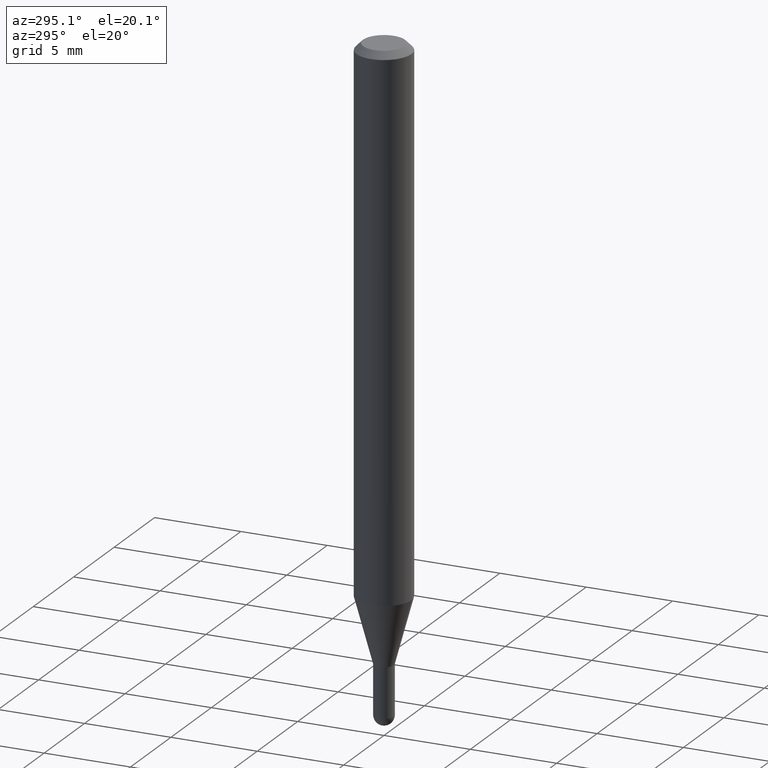
[diagram: clean part render]
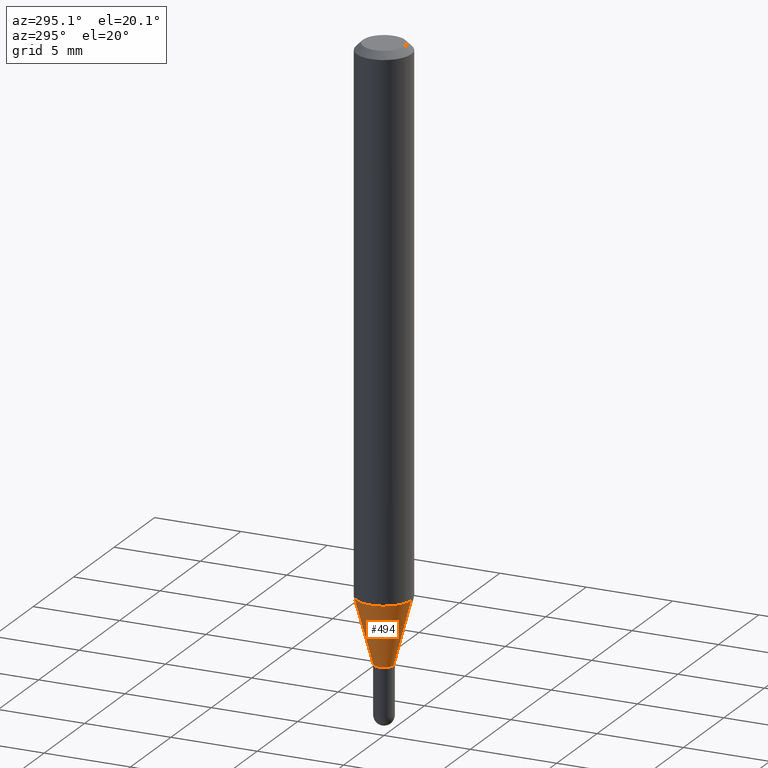
[diagram: same view with one face highlighted and labeled with its STEP entity id]
A machine part, auxiliary view. The second image highlights one B-rep face of the part: STEP entity #494.
In plain terms, the highlighted conical surface has half-angle 15 deg.
Its self-contained STEP definition (entity closure, byte-faithful):
#16 = DIRECTION ( 'NONE',  ( -6.982962677686266711E-15, -1.000000000000000000, 0.000000000000000000 ) ) ;
#19 = EDGE_CURVE ( 'NONE', #285, #33, #125, .T. ) ;
#33 = VERTEX_POINT ( 'NONE', #313 ) ;
#41 = DIRECTION ( 'NONE',  ( -6.982962677686266711E-15, -1.000000000000000000, 0.000000000000000000 ) ) ;
#47 = CARTESIAN_POINT ( 'NONE',  ( 3.338058803651969615E-29, -4.765880787113381937E-15, -1.364999999999999991 ) ) ;
#76 = DIRECTION ( 'NONE',  ( -1.807323732225378260E-15, -0.2588190451025250693, 0.9659258262890670910 ) ) ;
#78 = ORIENTED_EDGE ( 'NONE', *, *, #249, .F. ) ;
#113 = VECTOR ( 'NONE', #76, 39.37007874015748854 ) ;
#125 = CIRCLE ( 'NONE', #228, 0.02249999999999964528 ) ;
#141 = DIRECTION ( 'NONE',  ( -2.445464325019758025E-29, 3.491487756127019811E-15, 1.000000000000000000 ) ) ;
#185 = CIRCLE ( 'NONE', #340, 0.06250000000000000000 ) ;
#199 = ORIENTED_EDGE ( 'NONE', *, *, #19, .T. ) ;
#202 = CARTESIAN_POINT ( 'NONE',  ( 1.598721155460533754E-16, 0.02249999999999487826, -1.364999999999999991 ) ) ;
#209 = CARTESIAN_POINT ( 'NONE',  ( 3.019806626980729718E-16, 0.02249999999999487826, -1.364999999999999991 ) ) ;
#217 = FACE_OUTER_BOUND ( 'NONE', #363, .T. ) ;
#221 = EDGE_CURVE ( 'NONE', #33, #424, #425, .T. ) ;
#223 = ORIENTED_EDGE ( 'NONE', *, *, #292, .F. ) ;
#225 = CARTESIAN_POINT ( 'NONE',  ( -4.364351673553620871E-16, -0.06250000000000427436, -1.215717967697248048 ) ) ;
#228 = AXIS2_PLACEMENT_3D ( 'NONE', #47, #238, #41 ) ;
#238 = DIRECTION ( 'NONE',  ( -2.445464325019758025E-29, 3.491487756127019811E-15, 1.000000000000000000 ) ) ;
#249 = EDGE_CURVE ( 'NONE', #285, #392, #386, .T. ) ;
#265 = AXIS2_PLACEMENT_3D ( 'NONE', #456, #141, #16 ) ;
#285 = VERTEX_POINT ( 'NONE', #209 ) ;
#292 = EDGE_CURVE ( 'NONE', #392, #424, #185, .T. ) ;
#312 = DIRECTION ( 'NONE',  ( 1.839019923739649225E-15, 0.2588190451025318417, 0.9659258262890653146 ) ) ;
#313 = CARTESIAN_POINT ( 'NONE',  ( -1.571166602479051226E-16, -0.02250000000000441230, -1.364999999999999991 ) ) ;
#340 = AXIS2_PLACEMENT_3D ( 'NONE', #505, #469, #395 ) ;
#363 = EDGE_LOOP ( 'NONE', ( #78, #199, #379, #223 ) ) ;
#373 = CARTESIAN_POINT ( 'NONE',  ( -1.571166602479051226E-16, -0.02250000000000441230, -1.364999999999999991 ) ) ;
#379 = ORIENTED_EDGE ( 'NONE', *, *, #221, .T. ) ;
#386 = LINE ( 'NONE', #202, #406 ) ;
#392 = VERTEX_POINT ( 'NONE', #508 ) ;
#395 = DIRECTION ( 'NONE',  ( -6.982962677686265922E-15, -1.000000000000000000, 4.370956789862821150E-15 ) ) ;
#406 = VECTOR ( 'NONE', #312, 39.37007874015748143 ) ;
#424 = VERTEX_POINT ( 'NONE', #225 ) ;
#425 = LINE ( 'NONE', #373, #113 ) ;
#428 = CONICAL_SURFACE ( 'NONE', #265, 0.02249999999999964528, 0.2617993877991574014 ) ;
#456 = CARTESIAN_POINT ( 'NONE',  ( 3.338058803651969615E-29, -4.765880787113381937E-15, -1.364999999999999991 ) ) ;
#469 = DIRECTION ( 'NONE',  ( -2.445464325019758025E-29, 3.491487756127019811E-15, 1.000000000000000000 ) ) ;
#494 = ADVANCED_FACE ( 'NONE', ( #217 ), #428, .T. ) ;
#505 = CARTESIAN_POINT ( 'NONE',  ( 2.972994919289143303E-29, -4.244664399118566886E-15, -1.215717967697248492 ) ) ;
#508 = CARTESIAN_POINT ( 'NONE',  ( 4.440892098500920998E-16, 0.06249999999999573952, -1.215717967697248714 ) ) ;